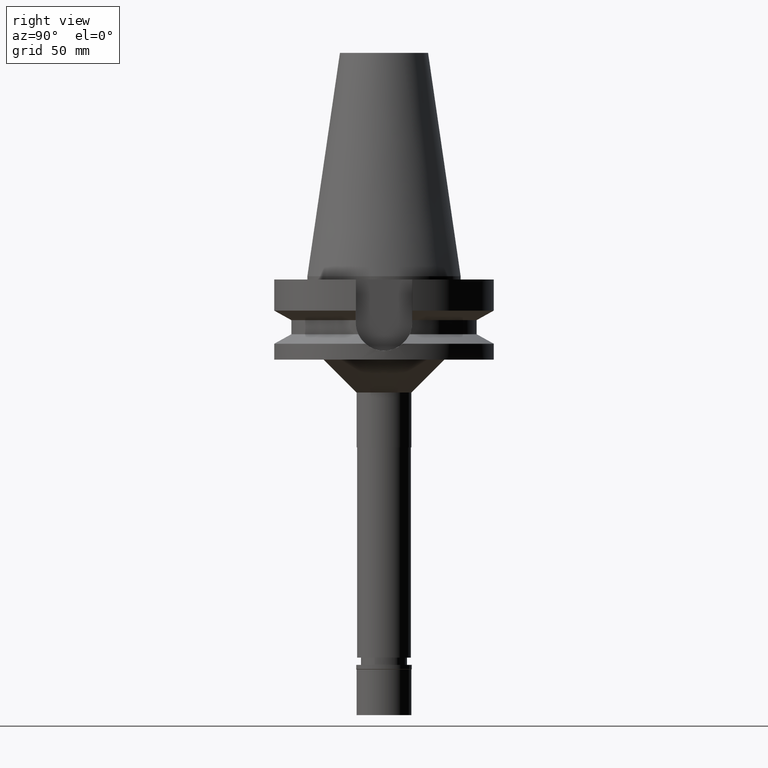
[diagram: clean part render]
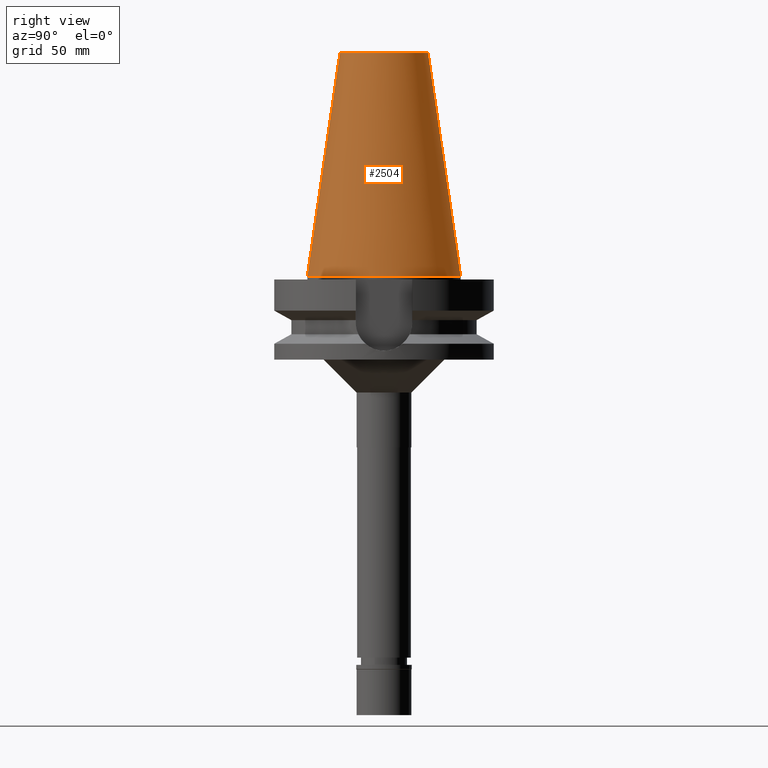
[diagram: same view with one face highlighted and labeled with its STEP entity id]
A machine part, right view. The second image highlights one B-rep face of the part: STEP entity #2504.
In plain terms, the highlighted conical surface has half-angle 8.297 deg.
Its self-contained STEP definition (entity closure, byte-faithful):
#143 = AXIS2_PLACEMENT_3D ( 'NONE', #1290, #1013, #2005 ) ;
#177 = VERTEX_POINT ( 'NONE', #1860 ) ;
#401 = VECTOR ( 'NONE', #2032, 1000.000000000000114 ) ;
#471 = DIRECTION ( 'NONE',  ( 0.0000000000000000000, -0.1443043893538948075, -0.9895333461855641000 ) ) ;
#561 = ORIENTED_EDGE ( 'NONE', *, *, #2236, .T. ) ;
#574 = VECTOR ( 'NONE', #471, 1000.000000000000114 ) ;
#579 = EDGE_CURVE ( 'NONE', #2528, #177, #1921, .T. ) ;
#596 = VERTEX_POINT ( 'NONE', #896 ) ;
#773 = AXIS2_PLACEMENT_3D ( 'NONE', #2895, #3129, #900 ) ;
#840 = DIRECTION ( 'NONE',  ( 0.0000000000000000000, -1.000000000000000000, 0.0000000000000000000 ) ) ;
#896 = CARTESIAN_POINT ( 'NONE',  ( 0.0000000000000000000, 34.92499999999999716, 4.476419235289000232E-13 ) ) ;
#900 = DIRECTION ( 'NONE',  ( 0.0000000000000000000, 1.000000000000000000, 0.0000000000000000000 ) ) ;
#1013 = DIRECTION ( 'NONE',  ( 0.0000000000000000000, 0.0000000000000000000, -1.000000000000000000 ) ) ;
#1290 = CARTESIAN_POINT ( 'NONE',  ( 0.0000000000000000000, 1.847992019912999597E-14, 3.979039320256999774E-13 ) ) ;
#1369 = FACE_OUTER_BOUND ( 'NONE', #2286, .T. ) ;
#1495 = CARTESIAN_POINT ( 'NONE',  ( 0.0000000000000000000, -20.07942971896000017, 101.7999999999999972 ) ) ;
#1523 = LINE ( 'NONE', #2518, #401 ) ;
#1551 = EDGE_CURVE ( 'NONE', #2528, #596, #1523, .T. ) ;
#1562 = CONICAL_SURFACE ( 'NONE', #1934, 27.50221485948000222, 0.1448099680379422438 ) ;
#1860 = CARTESIAN_POINT ( 'NONE',  ( 0.0000000000000000000, -20.07942971896000017, 101.7999999999999972 ) ) ;
#1921 = CIRCLE ( 'NONE', #773, 20.07942971896000017 ) ;
#1934 = AXIS2_PLACEMENT_3D ( 'NONE', #2363, #2065, #840 ) ;
#2005 = DIRECTION ( 'NONE',  ( 0.0000000000000000000, 1.000000000000000000, 0.0000000000000000000 ) ) ;
#2032 = DIRECTION ( 'NONE',  ( 0.0000000000000000000, 0.1443043893538948075, -0.9895333461855641000 ) ) ;
#2065 = DIRECTION ( 'NONE',  ( 0.0000000000000000000, 0.0000000000000000000, -1.000000000000000000 ) ) ;
#2099 = CARTESIAN_POINT ( 'NONE',  ( 0.0000000000000000000, -34.92499999999999716, 4.476419235289000232E-13 ) ) ;
#2236 = EDGE_CURVE ( 'NONE', #177, #2453, #2749, .T. ) ;
#2286 = EDGE_LOOP ( 'NONE', ( #2927, #561, #2937, #2554 ) ) ;
#2332 = EDGE_CURVE ( 'NONE', #596, #2453, #3219, .T. ) ;
#2363 = CARTESIAN_POINT ( 'NONE',  ( 0.0000000000000000000, 1.847992019912999597E-14, 50.89999999999999858 ) ) ;
#2453 = VERTEX_POINT ( 'NONE', #2099 ) ;
#2504 = ADVANCED_FACE ( 'NONE', ( #1369 ), #1562, .T. ) ;
#2518 = CARTESIAN_POINT ( 'NONE',  ( 0.0000000000000000000, 20.07942971896000017, 101.7999999999999972 ) ) ;
#2528 = VERTEX_POINT ( 'NONE', #2898 ) ;
#2554 = ORIENTED_EDGE ( 'NONE', *, *, #1551, .F. ) ;
#2749 = LINE ( 'NONE', #1495, #574 ) ;
#2895 = CARTESIAN_POINT ( 'NONE',  ( 0.0000000000000000000, 1.847992019912999597E-14, 101.7999999999999972 ) ) ;
#2898 = CARTESIAN_POINT ( 'NONE',  ( 0.0000000000000000000, 20.07942971896000017, 101.7999999999999972 ) ) ;
#2927 = ORIENTED_EDGE ( 'NONE', *, *, #579, .T. ) ;
#2937 = ORIENTED_EDGE ( 'NONE', *, *, #2332, .F. ) ;
#3129 = DIRECTION ( 'NONE',  ( 0.0000000000000000000, 0.0000000000000000000, -1.000000000000000000 ) ) ;
#3219 = CIRCLE ( 'NONE', #143, 34.92499999999999716 ) ;